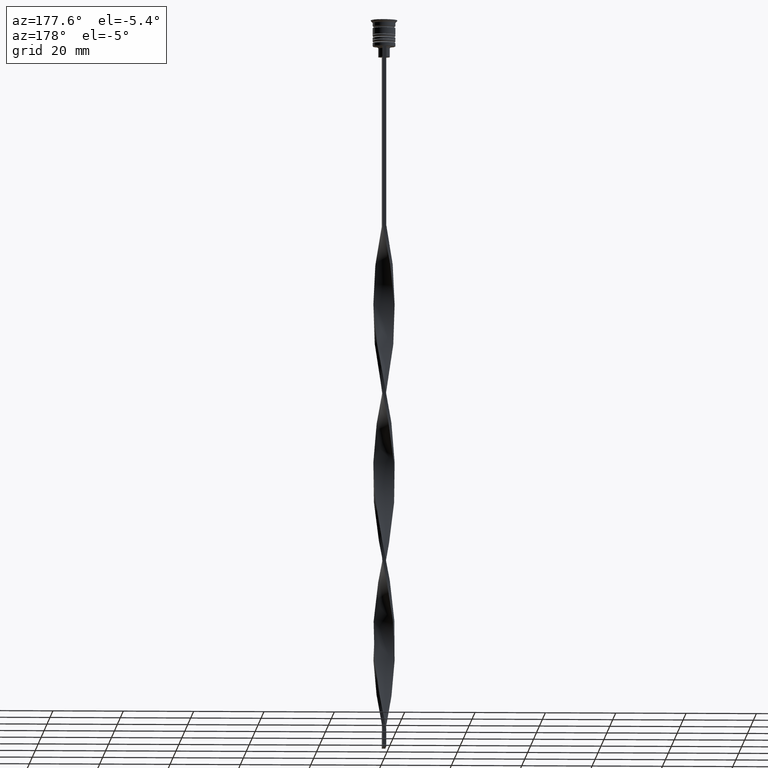
[diagram: clean part render]
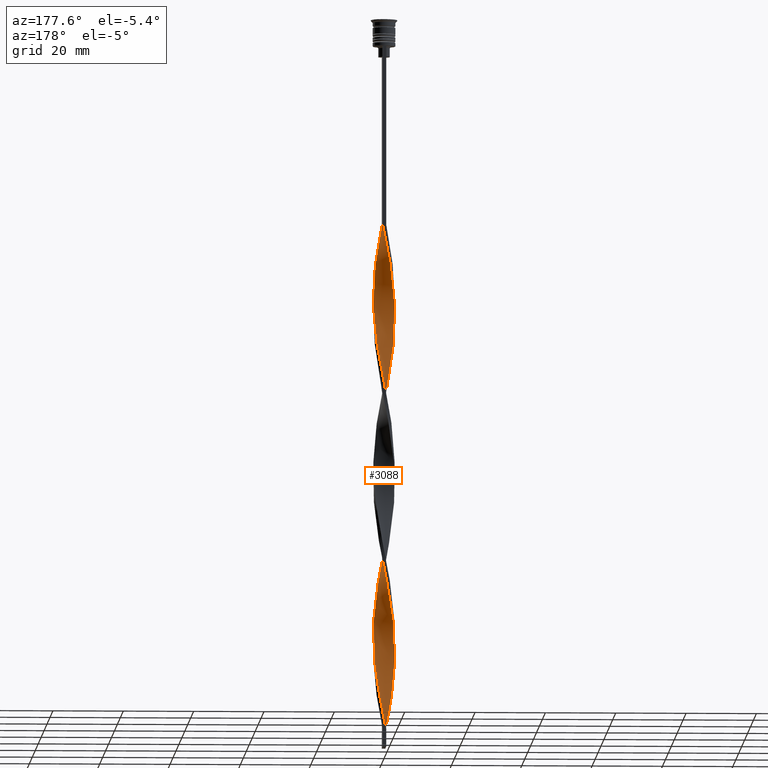
[diagram: same view with one face highlighted and labeled with its STEP entity id]
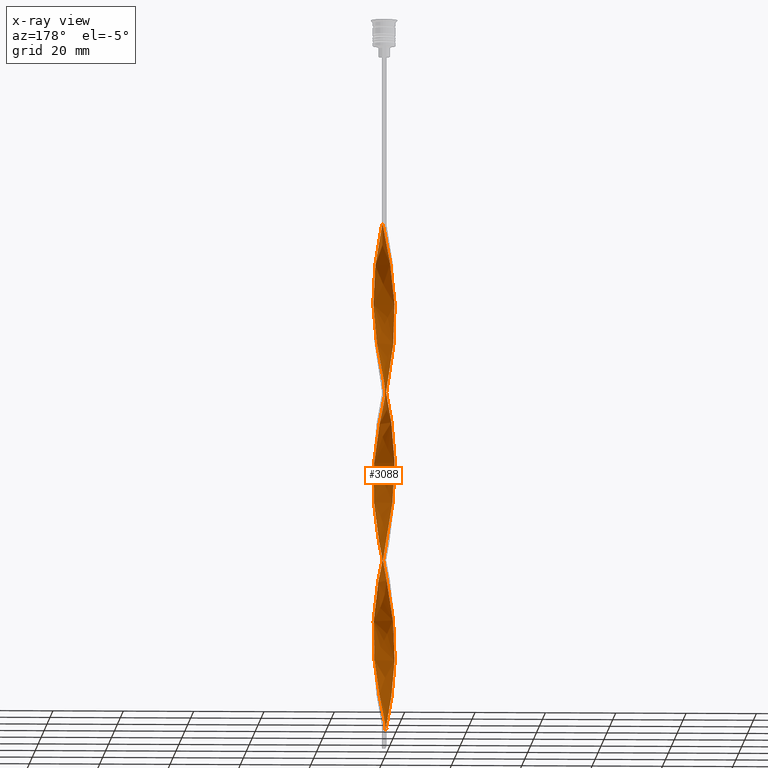
[diagram: x-ray of the same camera — body ghosted, the highlighted face saturated]
A machine part, auxiliary view. The second image highlights one B-rep face of the part: STEP entity #3088.
The next image is the same camera in x-ray: the body ghosted, the highlighted face saturated — about 0% of this face is hidden behind the body in this view.
In plain terms, the highlighted face is a freeform B-spline surface patch.
Its self-contained STEP definition (entity closure, byte-faithful):
#1 = CARTESIAN_POINT ( 'NONE',  ( -2.390591389550001722, -1.880178929838698387, -95.20588235294117396 ) ) ;
#15 = CARTESIAN_POINT ( 'NONE',  ( -2.908359051953456120, -0.8896334216520835891, -185.5588235294117396 ) ) ;
#20 = CARTESIAN_POINT ( 'NONE',  ( -2.941068349153452388, 0.7746721665374231014, -177.0882352941176237 ) ) ;
#36 = CARTESIAN_POINT ( 'NONE',  ( -1.792442958670039443, -2.473170806831126889, -195.4411764705882604 ) ) ;
#39 = CARTESIAN_POINT ( 'NONE',  ( -0.8934446992291310563, 2.920818749814322324, -161.5588235294117396 ) ) ;
#57 = CARTESIAN_POINT ( 'NONE',  ( -0.2220090612739103741, -3.046331823121014803, -107.9117647058823621 ) ) ;
#71 = CARTESIAN_POINT ( 'NONE',  ( 1.549961113263636836, 2.616795855119490533, -148.8529411764705799 ) ) ;
#81 = CARTESIAN_POINT ( 'NONE',  ( -1.792442958670038777, 2.473170806831127333, -113.5588235294117396 ) ) ;
#82 = CARTESIAN_POINT ( 'NONE',  ( -2.390591389550001722, -1.880178929838698387, -191.2058823529411598 ) ) ;
#87 = CARTESIAN_POINT ( 'NONE',  ( 0.6174888838592811346, 2.978037521306644120, -100.8529411764705941 ) ) ;
#98 = CARTESIAN_POINT ( 'NONE',  ( 3.033336708616754862, 0.2210620097576110610, -81.08823529411763786 ) ) ;
#104 = CARTESIAN_POINT ( 'NONE',  ( -1.549961113263637058, 2.616795855119490533, -112.1470588235294059 ) ) ;
#119 = CARTESIAN_POINT ( 'NONE',  ( -2.990795728622512417, 0.6201342673170635589, -124.8529411764705799 ) ) ;
#127 = CARTESIAN_POINT ( 'NONE',  ( 1.414931142305390521, 2.706916227440719247, -96.61764705882353610 ) ) ;
#138 = CARTESIAN_POINT ( 'NONE',  ( 1.651582472329342632, 2.553874573485255706, -95.20588235294117396 ) ) ;
#150 = CARTESIAN_POINT ( 'NONE',  ( 2.695369000030346296, -1.408895295497649691, -72.61764705882352189 ) ) ;
#163 = CARTESIAN_POINT ( 'NONE',  ( 0.7779909387260891540, -2.953668176878985641, -59.91176470588236214 ) ) ;
#170 = B_SPLINE_CURVE_WITH_KNOTS ( 'NONE', 3,
 ( #608, #1396, #1716, #1735 ),
 .UNSPECIFIED., .F., .F.,
 ( 4, 4 ),
 ( 0.000000000000000000, 1.000000000000000000 ),
 .UNSPECIFIED. ) ;
#173 = CARTESIAN_POINT ( 'NONE',  ( 0.05976200360776034309, 3.040794057959990582, -199.6764705882352757 ) ) ;
#181 = CARTESIAN_POINT ( 'NONE',  ( 2.990795728622511973, -0.6201342673170637809, -172.8529411764705799 ) ) ;
#188 = CARTESIAN_POINT ( 'NONE',  ( -1.414931142305390965, -2.706916227440719247, -144.6176470588235361 ) ) ;
#194 = CARTESIAN_POINT ( 'NONE',  ( -2.564815624776293213, -1.658658015008195319, -93.79411764705882604 ) ) ;
#197 = CARTESIAN_POINT ( 'NONE',  ( -2.908359051953456564, 0.8896334216520830340, -123.4411764705882177 ) ) ;
#208 = CARTESIAN_POINT ( 'NONE',  ( -0.8934446992291305012, -2.920818749814322324, -147.4411764705882320 ) ) ;
#213 = CARTESIAN_POINT ( 'NONE',  ( -2.004405056496874504, -2.287435325750164505, -98.02941176470588402 ) ) ;
#214 = CARTESIAN_POINT ( 'NONE',  ( 0.6174888838592811346, 2.978037521306644120, -196.8529411764705515 ) ) ;
#225 = CARTESIAN_POINT ( 'NONE',  ( 3.012852296747023484, 0.5021420494578369143, -178.5000000000000000 ) ) ;
#232 = CARTESIAN_POINT ( 'NONE',  ( -2.216367154323709787, -2.101699844669203010, -96.61764705882355031 ) ) ;
#234 = CARTESIAN_POINT ( 'NONE',  ( 2.825922375284400712, -1.159132575987104063, -170.0294117647058556 ) ) ;
#242 = CARTESIAN_POINT ( 'NONE',  ( -0.3415330684894319901, -3.035256292798965916, -150.2647058823528994 ) ) ;
#250 = CARTESIAN_POINT ( 'NONE',  ( -3.053821120486486240, -0.06001802994261491719, -85.32352941176469585 ) ) ;
#269 = CARTESIAN_POINT ( 'NONE',  ( 2.628006467404950364, -1.556601299988307430, -124.8529411764705799 ) ) ;
#276 = CARTESIAN_POINT ( 'NONE',  ( -1.042735103291662080, -2.857044540143419908, -103.6764705882352899 ) ) ;
#287 = CARTESIAN_POINT ( 'NONE',  ( -3.012852296747023484, 0.5021420494578373583, -178.5000000000000000 ) ) ;
#293 = CARTESIAN_POINT ( 'NONE',  ( -2.990795728622511973, -0.6201342673170633368, -88.14705882352940591 ) ) ;
#303 = CARTESIAN_POINT ( 'NONE',  ( -2.216367154323709787, -2.101699844669203010, -192.6176470588235077 ) ) ;
#306 = CARTESIAN_POINT ( 'NONE',  ( -0.6174888838592811346, 2.978037521306644120, -160.1470588235293917 ) ) ;
#325 = CARTESIAN_POINT ( 'NONE',  ( -1.792442958670039221, -2.473170806831126445, -99.44117647058823195 ) ) ;
#336 = CARTESIAN_POINT ( 'NONE',  ( 2.825922375284400712, 1.159132575987103841, -138.9705882352941160 ) ) ;
#340 = CARTESIAN_POINT ( 'NONE',  ( 1.154187920767260511, -2.813867488627520341, -114.9705882352941018 ) ) ;
#347 = CARTESIAN_POINT ( 'NONE',  ( 1.154187920767260289, 2.813867488627520785, -98.02941176470588402 ) ) ;
#348 = CARTESIAN_POINT ( 'NONE',  ( -2.564815624776293213, -1.658658015008195319, -189.7941176470588118 ) ) ;
#355 = CARTESIAN_POINT ( 'NONE',  ( -3.033336708616754418, 0.2210620097576115606, -179.9117647058823195 ) ) ;
#363 = ORIENTED_EDGE ( 'NONE', *, *, #1835, .F. ) ;
#366 = CARTESIAN_POINT ( 'NONE',  ( -0.4999999999999995559, 3.000000000000000000, -106.4999999999999858 ) ) ;
#374 = CARTESIAN_POINT ( 'NONE',  ( 3.012852296747023484, 0.5021420494578369143, -82.49999999999998579 ) ) ;
#384 = CARTESIAN_POINT ( 'NONE',  ( -2.216367154323709343, 2.101699844669203454, -116.3823529411764781 ) ) ;
#385 = DIRECTION ( 'NONE',  ( 0.000000000000000000, 1.000000000000000000, 0.000000000000000000 ) ) ;
#391 = CARTESIAN_POINT ( 'NONE',  ( -2.390591389550001278, 1.880178929838698831, -117.7941176470588118 ) ) ;
#404 = CARTESIAN_POINT ( 'NONE',  ( 1.888233802353294966, 2.400832919529793497, -93.79411764705882604 ) ) ;
#412 = CARTESIAN_POINT ( 'NONE',  ( -1.042735103291661192, 2.857044540143419908, -109.3235294117646959 ) ) ;
#433 = CARTESIAN_POINT ( 'NONE',  ( -2.390591389550001722, -1.880178929838698387, -191.2058823529411598 ) ) ;
#440 = CARTESIAN_POINT ( 'NONE',  ( -2.628006467404950808, -1.556601299988306542, -136.1470588235294201 ) ) ;
#448 = CARTESIAN_POINT ( 'NONE',  ( 2.908359051953456564, -0.8896334216520838112, -171.4411764705882035 ) ) ;
#454 = CARTESIAN_POINT ( 'NONE',  ( -0.2220090612739111235, 3.046331823121015692, -201.0882352941176237 ) ) ;
#461 = CARTESIAN_POINT ( 'NONE',  ( 2.004405056496874504, -2.287435325750164505, -162.9705882352940876 ) ) ;
#467 = CARTESIAN_POINT ( 'NONE',  ( -1.154187920767261843, -2.813867488627519897, -146.0294117647058556 ) ) ;
#474 = CARTESIAN_POINT ( 'NONE',  ( -1.307479267857235117, -2.760420903407855509, -102.2647058823529420 ) ) ;
#475 = CARTESIAN_POINT ( 'NONE',  ( 1.651582472329342632, 2.553874573485255706, -191.2058823529411598 ) ) ;
#486 =( BOUNDED_SURFACE ( )  B_SPLINE_SURFACE ( 1, 2, ( 
 ( #1313, #3556, #3316, #1612, #2226, #769, #3630, #3337, #2460, #3571, #809, #1048, #1951, #522, #1672, #3296, #1910, #2519, #1111, #2242, #828, #293, #3149, #3374, #2878, #2063, #1, #3092, #601, #325, #2806, #3443, #276, #1710, #1463, #57, #1482, #3130, #3394, #1693, #340, #869, #2299, #920, #1767, #2284, #620, #1448, #1409, #1148, #2572, #1170, #542, #1204, #2014, #1729, #2605, #2552, #2826, #2537, #563, #1751, #3113, #584, #71, #2031, #1127, #2263, #1188, #2838, #2862, #2590, #306, #39, #886, #2315, #3426, #851, #3412, #904, #1994, #2048, #2331, #1428, #20, #710, #355, #3206, #1855, #2968, #3221, #1499, #1238, #3185, #433, #1580, #2623, #2700, #3459, #653, #1220, #2362, #2099 ),
 ( #676, #163, #954, #1294, #2949, #1008, #2681, #2423, #2345, #3498, #150, #938, #973, #2895, #2640, #3165, #693, #374, #1255, #3531, #991, #2661, #1818, #1556, #2118, #2078, #636, #127, #1800, #3242, #87, #2385, #1784, #1518, #1837, #2916, #412, #1278, #104, #3477, #2931, #2402, #391, #1536, #3513, #2136, #197, #3587, #1646, #1666, #787, #1872, #1595, #3567, #2456, #1045, #3312, #3277, #2985, #2184, #2439, #3293, #3019, #2768, #3626, #2149, #2516, #764, #2715, #1928, #1332, #519, #3039, #3003, #461, #2746, #1607, #2197, #497, #234, #448, #181, #1309, #1364, #2494, #2169, #3551, #3260, #1907, #2728, #3605, #1090, #1030, #744, #475, #1627, #1890, #729, #214, #1347, #2476, #1066, #2221 ) ),
 .UNSPECIFIED., .F., .F., .F. ) 
 B_SPLINE_SURFACE_WITH_KNOTS ( ( 2, 2 ),
 ( 3, 2, 2, 2, 2, 2, 2, 2, 2, 2, 2, 2, 2, 2, 2, 2, 2, 2, 2, 2, 2, 2, 2, 2, 2, 2, 2, 2, 2, 2, 2, 2, 2, 2, 2, 2, 2, 2, 2, 2, 2, 2, 2, 2, 2, 2, 2, 2, 2, 2, 2, 3 ),
 ( 0.000000000000000000, 1.000000000000000000 ),
 ( 0.000000000000000000, 0.01470588235294117627, 0.02941176470588235253, 0.04411764705882353227, 0.05882352941176470507, 0.07352941176470588480, 0.08823529411764706454, 0.1029411764705882304, 0.1176470588235294101, 0.1323529411764705899, 0.1470588235294117696, 0.1617647058823529493, 0.1764705882352941291, 0.1911764705882352811, 0.2058823529411764608, 0.2205882352941176405, 0.2352941176470588203, 0.2500000000000000000, 0.2647058823529411797, 0.2794117647058823595, 0.2941176470588235392, 0.3088235294117647189, 0.3235294117647058987, 0.3382352941176470784, 0.3529411764705882582, 0.3676470588235294379, 0.3823529411764705621, 0.3970588235294117418, 0.4117647058823529216, 0.4264705882352941013, 0.4411764705882352811, 0.4558823529411764608, 0.4705882352941176405, 0.4852941176470588203, 0.5000000000000000000, 0.5147058823529411242, 0.5294117647058823595, 0.5441176470588234837, 0.5588235294117647189, 0.5735294117647058432, 0.5882352941176470784, 0.6029411764705882026, 0.6176470588235294379, 0.6323529411764705621, 0.6470588235294117974, 0.6617647058823529216, 0.6764705882352941568, 0.6911764705882352811, 0.7058823529411765163, 0.7205882352941176405, 0.7352941176470588758, 0.7500000000000000000 ),
 .UNSPECIFIED. ) 
 GEOMETRIC_REPRESENTATION_ITEM ( )  RATIONAL_B_SPLINE_SURFACE ( (
 ( 1.000000000000000000, 0.9957341762950344677, 1.000000000000000000, 0.9957341762950344677, 1.000000000000000000, 0.9957341762950344677, 1.000000000000000000, 0.9957341762950344677, 1.000000000000000000, 0.9957341762950344677, 1.000000000000000000, 0.9957341762950344677, 1.000000000000000000, 0.9957341762950344677, 1.000000000000000000, 0.9957341762950344677, 1.000000000000000000, 0.9957341762950344677, 1.000000000000000000, 0.9957341762950344677, 1.000000000000000000, 0.9957341762950344677, 1.000000000000000000, 0.9957341762950344677, 1.000000000000000000, 0.9957341762950344677, 1.000000000000000000, 0.9957341762950344677, 1.000000000000000000, 0.9957341762950344677, 1.000000000000000000, 0.9957341762950344677, 1.000000000000000000, 0.9957341762950344677, 1.000000000000000000, 0.9957341762950344677, 1.000000000000000000, 0.9957341762950344677, 1.000000000000000000, 0.9957341762950344677, 1.000000000000000000, 0.9957341762950344677, 1.000000000000000000, 0.9957341762950344677, 1.000000000000000000, 0.9957341762950344677, 1.000000000000000000, 0.9957341762950344677, 1.000000000000000000, 0.9957341762950344677, 1.000000000000000000, 0.9957341762950344677, 1.000000000000000000, 0.9957341762950344677, 1.000000000000000000, 0.9957341762950344677, 1.000000000000000000, 0.9957341762950344677, 1.000000000000000000, 0.9957341762950344677, 1.000000000000000000, 0.9957341762950344677, 1.000000000000000000, 0.9957341762950344677, 1.000000000000000000, 0.9957341762950344677, 1.000000000000000000, 0.9957341762950344677, 1.000000000000000000, 0.9957341762950344677, 1.000000000000000000, 0.9957341762950344677, 1.000000000000000000, 0.9957341762950344677, 1.000000000000000000, 0.9957341762950344677, 1.000000000000000000, 0.9957341762950344677, 1.000000000000000000, 0.9957341762950344677, 1.000000000000000000, 0.9957341762950344677, 1.000000000000000000, 0.9957341762950344677, 1.000000000000000000, 0.9957341762950344677, 1.000000000000000000, 0.9957341762950344677, 1.000000000000000000, 0.9957341762950344677, 1.000000000000000000, 0.9957341762950344677, 1.000000000000000000, 0.9957341762950344677, 1.000000000000000000, 0.9957341762950344677, 1.000000000000000000, 0.9957341762950344677, 1.000000000000000000, 0.9957341762950344677, 1.000000000000000000, 0.9957341762950344677, 1.000000000000000000),
 ( 1.000000000000000000, 0.9957341762950344677, 1.000000000000000000, 0.9957341762950344677, 1.000000000000000000, 0.9957341762950344677, 1.000000000000000000, 0.9957341762950344677, 1.000000000000000000, 0.9957341762950344677, 1.000000000000000000, 0.9957341762950344677, 1.000000000000000000, 0.9957341762950344677, 1.000000000000000000, 0.9957341762950344677, 1.000000000000000000, 0.9957341762950344677, 1.000000000000000000, 0.9957341762950344677, 1.000000000000000000, 0.9957341762950344677, 1.000000000000000000, 0.9957341762950344677, 1.000000000000000000, 0.9957341762950344677, 1.000000000000000000, 0.9957341762950344677, 1.000000000000000000, 0.9957341762950344677, 1.000000000000000000, 0.9957341762950344677, 1.000000000000000000, 0.9957341762950344677, 1.000000000000000000, 0.9957341762950344677, 1.000000000000000000, 0.9957341762950344677, 1.000000000000000000, 0.9957341762950344677, 1.000000000000000000, 0.9957341762950344677, 1.000000000000000000, 0.9957341762950344677, 1.000000000000000000, 0.9957341762950344677, 1.000000000000000000, 0.9957341762950344677, 1.000000000000000000, 0.9957341762950344677, 1.000000000000000000, 0.9957341762950344677, 1.000000000000000000, 0.9957341762950344677, 1.000000000000000000, 0.9957341762950344677, 1.000000000000000000, 0.9957341762950344677, 1.000000000000000000, 0.9957341762950344677, 1.000000000000000000, 0.9957341762950344677, 1.000000000000000000, 0.9957341762950344677, 1.000000000000000000, 0.9957341762950344677, 1.000000000000000000, 0.9957341762950344677, 1.000000000000000000, 0.9957341762950344677, 1.000000000000000000, 0.9957341762950344677, 1.000000000000000000, 0.9957341762950344677, 1.000000000000000000, 0.9957341762950344677, 1.000000000000000000, 0.9957341762950344677, 1.000000000000000000, 0.9957341762950344677, 1.000000000000000000, 0.9957341762950344677, 1.000000000000000000, 0.9957341762950344677, 1.000000000000000000, 0.9957341762950344677, 1.000000000000000000, 0.9957341762950344677, 1.000000000000000000, 0.9957341762950344677, 1.000000000000000000, 0.9957341762950344677, 1.000000000000000000, 0.9957341762950344677, 1.000000000000000000, 0.9957341762950344677, 1.000000000000000000, 0.9957341762950344677, 1.000000000000000000, 0.9957341762950344677, 1.000000000000000000, 0.9957341762950344677, 1.000000000000000000) ) ) 
 REPRESENTATION_ITEM ( '' )  SURFACE ( )  );
#490 = CARTESIAN_POINT ( 'NONE',  ( 1.888233802353294966, 2.400832919529793497, -189.7941176470588118 ) ) ;
#497 = CARTESIAN_POINT ( 'NONE',  ( 2.695369000030346296, -1.408895295497649691, -168.6176470588235077 ) ) ;
#509 = CARTESIAN_POINT ( 'NONE',  ( 2.390591389550001278, -1.880178929838698831, -165.7941176470588118 ) ) ;
#519 = CARTESIAN_POINT ( 'NONE',  ( 1.307479267857234673, -2.760420903407855509, -158.7352941176470154 ) ) ;
#522 = CARTESIAN_POINT ( 'NONE',  ( -2.628006467404950364, 1.556601299988307430, -76.85294117647060830 ) ) ;
#530 = EDGE_LOOP ( 'NONE', ( #2038, #3300, #363, #1611 ) ) ;
#536 = CARTESIAN_POINT ( 'NONE',  ( 1.414931142305389411, -2.706916227440719691, -116.3823529411764781 ) ) ;
#542 = CARTESIAN_POINT ( 'NONE',  ( 3.033336708616754418, -0.2210620097576125875, -131.9117647058823479 ) ) ;
#557 = CARTESIAN_POINT ( 'NONE',  ( 2.695369000030347184, 1.408895295497648803, -140.3823529411764639 ) ) ;
#563 = CARTESIAN_POINT ( 'NONE',  ( 2.390591389550000834, 1.880178929838699053, -143.2058823529411882 ) ) ;
#577 = CARTESIAN_POINT ( 'NONE',  ( -1.651582472329342188, 2.553874573485256150, -165.7941176470588118 ) ) ;
#584 = CARTESIAN_POINT ( 'NONE',  ( 1.792442958670038555, 2.473170806831126889, -147.4411764705882320 ) ) ;
#596 = CARTESIAN_POINT ( 'NONE',  ( -0.5000000000000002220, -3.000000000000000000, -202.4999999999999716 ) ) ;
#601 = CARTESIAN_POINT ( 'NONE',  ( -2.004405056496874504, -2.287435325750164505, -98.02941176470588402 ) ) ;
#608 = CARTESIAN_POINT ( 'NONE',  ( -0.5000000000000002220, -3.000000000000000000, -202.4999999999999716 ) ) ;
#616 = CARTESIAN_POINT ( 'NONE',  ( -1.888233802353294966, 2.400832919529793497, -167.2058823529411882 ) ) ;
#620 = CARTESIAN_POINT ( 'NONE',  ( 2.462620696176918589, -1.784796713007145375, -123.4411764705882177 ) ) ;
#631 = CARTESIAN_POINT ( 'NONE',  ( 0.4999999999999998890, -3.000000000000000000, -58.50000000000000000 ) ) ;
#632 = CARTESIAN_POINT ( 'NONE',  ( -2.297234924948886370, 2.012992126025985318, -170.0294117647058840 ) ) ;
#636 = CARTESIAN_POINT ( 'NONE',  ( 1.651582472329342632, 2.553874573485255706, -95.20588235294117396 ) ) ;
#644 = CARTESIAN_POINT ( 'NONE',  ( -0.2220090612739111235, 3.046331823121015692, -105.0882352941176521 ) ) ;
#653 = CARTESIAN_POINT ( 'NONE',  ( -1.307479267857235339, -2.760420903407855509, -198.2647058823529562 ) ) ;
#676 = CARTESIAN_POINT ( 'NONE',  ( 0.4999999999999998890, -3.000000000000000000, -58.50000000000000000 ) ) ;
#684 = CARTESIAN_POINT ( 'NONE',  ( 3.022308424554498441, -0.3400761486298388703, -78.26470588235292780 ) ) ;
#693 = CARTESIAN_POINT ( 'NONE',  ( 3.033336708616754862, 0.2210620097576110610, -81.08823529411763786 ) ) ;
#704 = CARTESIAN_POINT ( 'NONE',  ( -0.7779909387260893761, 2.953668176878985641, -107.9117647058823621 ) ) ;
#710 = CARTESIAN_POINT ( 'NONE',  ( -3.012852296747023484, 0.5021420494578373583, -178.4999999999999716 ) ) ;
#719 = CARTESIAN_POINT ( 'NONE',  ( 1.307479267857234451, -2.760420903407855509, -158.7352941176470438 ) ) ;
#729 = CARTESIAN_POINT ( 'NONE',  ( 0.8934446992291316114, 2.920818749814321880, -195.4411764705882604 ) ) ;
#736 = CARTESIAN_POINT ( 'NONE',  ( 3.033336708616754862, 0.2210620097576110610, -177.0882352941176237 ) ) ;
#742 = CARTESIAN_POINT ( 'NONE',  ( -2.695369000030346740, -1.408895295497649247, -92.38235294117646390 ) ) ;
#744 = CARTESIAN_POINT ( 'NONE',  ( 1.888233802353294966, 2.400832919529793497, -189.7941176470587834 ) ) ;
#756 = CARTESIAN_POINT ( 'NONE',  ( 0.2220090612739107072, -3.046331823121016136, -153.0882352941176237 ) ) ;
#764 = CARTESIAN_POINT ( 'NONE',  ( 0.2220090612739107072, -3.046331823121015692, -153.0882352941176237 ) ) ;
#769 = CARTESIAN_POINT ( 'NONE',  ( -0.8934446992291310563, 2.920818749814322324, -65.55882352941179647 ) ) ;
#777 = CARTESIAN_POINT ( 'NONE',  ( 1.792442958670039221, -2.473170806831127333, -161.5588235294117680 ) ) ;
#787 = CARTESIAN_POINT ( 'NONE',  ( -3.033336708616754418, -0.2210620097576114496, -129.0882352941176521 ) ) ;
#797 = CARTESIAN_POINT ( 'NONE',  ( -2.748645434482416050, -1.301901791802657860, -134.7352941176470722 ) ) ;
#804 = CARTESIAN_POINT ( 'NONE',  ( -2.297234924948886370, 2.012992126025985318, -74.02941176470586981 ) ) ;
#809 = CARTESIAN_POINT ( 'NONE',  ( -2.092734363651090224, 2.206912522777888963, -72.61764705882352189 ) ) ;
#825 = CARTESIAN_POINT ( 'NONE',  ( -1.154187920767260289, 2.813867488627520785, -66.97058823529411598 ) ) ;
#828 = CARTESIAN_POINT ( 'NONE',  ( -3.022308424554498441, -0.3400761486298393144, -86.73529411764704378 ) ) ;
#844 = CARTESIAN_POINT ( 'NONE',  ( 2.390591389550000834, 1.880178929838699053, -143.2058823529411882 ) ) ;
#851 = CARTESIAN_POINT ( 'NONE',  ( -1.888233802353294966, 2.400832919529793497, -167.2058823529411882 ) ) ;
#865 = CARTESIAN_POINT ( 'NONE',  ( 2.941068349153452832, -0.7746721665374229904, -129.0882352941176521 ) ) ;
#869 = CARTESIAN_POINT ( 'NONE',  ( 1.414931142305389633, -2.706916227440719691, -116.3823529411764781 ) ) ;
#880 = CARTESIAN_POINT ( 'NONE',  ( -1.042735103291662080, -2.857044540143419908, -199.6764705882352757 ) ) ;
#886 = CARTESIAN_POINT ( 'NONE',  ( -1.154187920767260289, 2.813867488627520785, -162.9705882352940876 ) ) ;
#896 = CARTESIAN_POINT ( 'NONE',  ( -2.462620696176917701, 1.784796713007145819, -171.4411764705882035 ) ) ;
#904 = CARTESIAN_POINT ( 'NONE',  ( -2.297234924948886814, 2.012992126025985318, -170.0294117647058556 ) ) ;
#915 = CARTESIAN_POINT ( 'NONE',  ( 1.307479267857235339, 2.760420903407855064, -150.2647058823528994 ) ) ;
#920 = CARTESIAN_POINT ( 'NONE',  ( 1.888233802353294966, -2.400832919529793497, -119.2058823529411455 ) ) ;
#930 = CARTESIAN_POINT ( 'NONE',  ( 2.869284401559882625, 1.047202283617009400, -85.32352941176469585 ) ) ;
#938 = CARTESIAN_POINT ( 'NONE',  ( 2.825922375284400712, -1.159132575987104063, -74.02941176470586981 ) ) ;
#947 = CARTESIAN_POINT ( 'NONE',  ( 2.695369000030346296, -1.408895295497649691, -72.61764705882352189 ) ) ;
#954 = CARTESIAN_POINT ( 'NONE',  ( 1.042735103291661858, -2.857044540143419908, -61.32352941176470296 ) ) ;
#965 = CARTESIAN_POINT ( 'NONE',  ( 2.564815624776293213, -1.658658015008195319, -71.20588235294118817 ) ) ;
#973 = CARTESIAN_POINT ( 'NONE',  ( 2.908359051953456564, -0.8896334216520838112, -75.44117647058823195 ) ) ;
#982 = CARTESIAN_POINT ( 'NONE',  ( 0.3415330684894316016, 3.035256292798965916, -102.2647058823529420 ) ) ;
#991 = CARTESIAN_POINT ( 'NONE',  ( 2.748645434482416050, 1.301901791802658304, -86.73529411764704378 ) ) ;
#1008 = CARTESIAN_POINT ( 'NONE',  ( 1.792442958670038999, -2.473170806831126889, -65.55882352941179647 ) ) ;
#1030 = CARTESIAN_POINT ( 'NONE',  ( 2.092734363651090668, 2.206912522777888963, -188.3823529411764355 ) ) ;
#1037 = CARTESIAN_POINT ( 'NONE',  ( 2.564815624776293213, -1.658658015008195319, -167.2058823529411882 ) ) ;
#1045 = CARTESIAN_POINT ( 'NONE',  ( -2.628006467404950808, -1.556601299988306542, -136.1470588235294201 ) ) ;
#1048 = CARTESIAN_POINT ( 'NONE',  ( -2.297234924948886814, 2.012992126025985318, -74.02941176470586981 ) ) ;
#1066 = CARTESIAN_POINT ( 'NONE',  ( -0.2220090612739111235, 3.046331823121015248, -201.0882352941176237 ) ) ;
#1090 = CARTESIAN_POINT ( 'NONE',  ( 2.297234924948886814, 2.012992126025985762, -186.9705882352941444 ) ) ;
#1100 = CARTESIAN_POINT ( 'NONE',  ( 2.908359051953456564, -0.8896334216520838112, -171.4411764705882035 ) ) ;
#1102 = VERTEX_POINT ( 'NONE', #2659 ) ;
#1106 = CARTESIAN_POINT ( 'NONE',  ( -1.792442958670039443, -2.473170806831126889, -99.44117647058823195 ) ) ;
#1111 = CARTESIAN_POINT ( 'NONE',  ( -3.033336708616754418, 0.2210620097576115606, -83.91176470588234793 ) ) ;
#1123 = CARTESIAN_POINT ( 'NONE',  ( -2.990795728622512417, -0.6201342673170633368, -88.14705882352940591 ) ) ;
#1127 = CARTESIAN_POINT ( 'NONE',  ( 1.042735103291660970, 2.857044540143419908, -151.6764705882353041 ) ) ;
#1141 = CARTESIAN_POINT ( 'NONE',  ( 3.053821120486486240, 0.06001802994261524332, -133.3235294117646959 ) ) ;
#1148 = CARTESIAN_POINT ( 'NONE',  ( 2.869284401559883069, -1.047202283617008511, -127.6764705882352615 ) ) ;
#1163 = CARTESIAN_POINT ( 'NONE',  ( -1.549961113263636614, -2.616795855119490533, -196.8529411764705515 ) ) ;
#1169 =( BOUNDED_CURVE ( )  B_SPLINE_CURVE ( 2, ( #1643, #2490, #3642, #1402, #1346, #1926, #825, #2745, #3016, #1888, #3289, #804, #3308, #3038, #1965, #2765, #3071, #1665, #2255, #250, #2530, #1123, #1905, #1384, #742, #194, #3002, #232, #213, #1106, #3053, #474, #2726, #2217, #3330, #1329, #2455, #3586, #1946, #2781, #3623, #536, #1686, #2238, #3566, #3350, #2801, #269, #2310, #1422, #865, #2324, #3438, #1141, #3125, #3389, #1440, #336, #557, #1987, #844, #2601, #1762, #2008, #3105, #915, #2549, #2059, #1216, #2819, #2279, #3421, #3144, #3087, #2615, #1704, #577, #616, #2872, #632, #896, #1743, #1723, #1491, #3159, #287, #3406, #1778, #2889, #2043, #15, #2566, #2834, #348, #82, #303, #3369, #36, #1163, #2294, #880, #2026, #596 ),
 .UNSPECIFIED., .F., .T. ) 
 B_SPLINE_CURVE_WITH_KNOTS ( ( 3, 2, 2, 2, 2, 2, 2, 2, 2, 2, 2, 2, 2, 2, 2, 2, 2, 2, 2, 2, 2, 2, 2, 2, 2, 2, 2, 2, 2, 2, 2, 2, 2, 2, 2, 2, 2, 2, 2, 2, 2, 2, 2, 2, 2, 2, 2, 2, 2, 2, 2, 3 ),
 ( 0.000000000000000000, 0.01470588235294117453, 0.02941176470588234906, 0.04411764705882353227, 0.05882352941176469813, 0.07352941176470588480, 0.08823529411764706454, 0.1029411764705882443, 0.1176470588235293963, 0.1323529411764705899, 0.1470588235294117696, 0.1617647058823529493, 0.1764705882352941291, 0.1911764705882352811, 0.2058823529411764885, 0.2205882352941176405, 0.2352941176470587925, 0.2500000000000000000, 0.2647058823529411797, 0.2794117647058823595, 0.2941176470588235392, 0.3088235294117647189, 0.3235294117647058987, 0.3382352941176470229, 0.3529411764705882582, 0.3676470588235294379, 0.3823529411764705621, 0.3970588235294117418, 0.4117647058823529771, 0.4264705882352941013, 0.4411764705882352811, 0.4558823529411764608, 0.4705882352941175850, 0.4852941176470588203, 0.5000000000000000000, 0.5147058823529411242, 0.5294117647058823595, 0.5441176470588234837, 0.5588235294117647189, 0.5735294117647058432, 0.5882352941176470784, 0.6029411764705882026, 0.6176470588235294379, 0.6323529411764705621, 0.6470588235294117974, 0.6617647058823529216, 0.6764705882352940458, 0.6911764705882351700, 0.7058823529411765163, 0.7205882352941176405, 0.7352941176470588758, 0.7500000000000000000 ),
 .UNSPECIFIED. ) 
 CURVE ( )  GEOMETRIC_REPRESENTATION_ITEM ( )  RATIONAL_B_SPLINE_CURVE ( ( 1.000000000000000000, 0.9957341762950344677, 1.000000000000000000, 0.9957341762950344677, 1.000000000000000000, 0.9957341762950344677, 1.000000000000000000, 0.9957341762950344677, 1.000000000000000000, 0.9957341762950344677, 1.000000000000000000, 0.9957341762950344677, 1.000000000000000000, 0.9957341762950344677, 1.000000000000000000, 0.9957341762950344677, 1.000000000000000000, 0.9957341762950344677, 1.000000000000000000, 0.9957341762950344677, 1.000000000000000000, 0.9957341762950344677, 1.000000000000000000, 0.9957341762950344677, 1.000000000000000000, 0.9957341762950344677, 1.000000000000000000, 0.9957341762950344677, 1.000000000000000000, 0.9957341762950344677, 1.000000000000000000, 0.9957341762950344677, 1.000000000000000000, 0.9957341762950344677, 1.000000000000000000, 0.9957341762950344677, 1.000000000000000000, 0.9957341762950344677, 1.000000000000000000, 0.9957341762950344677, 1.000000000000000000, 0.9957341762950344677, 1.000000000000000000, 0.9957341762950344677, 1.000000000000000000, 0.9957341762950344677, 1.000000000000000000, 0.9957341762950344677, 1.000000000000000000, 0.9957341762950344677, 1.000000000000000000, 0.9957341762950344677, 1.000000000000000000, 0.9957341762950344677, 1.000000000000000000, 0.9957341762950344677, 1.000000000000000000, 0.9957341762950344677, 1.000000000000000000, 0.9957341762950344677, 1.000000000000000000, 0.9957341762950344677, 1.000000000000000000, 0.9957341762950344677, 1.000000000000000000, 0.9957341762950344677, 1.000000000000000000, 0.9957341762950344677, 1.000000000000000000, 0.9957341762950344677, 1.000000000000000000, 0.9957341762950344677, 1.000000000000000000, 0.9957341762950344677, 1.000000000000000000, 0.9957341762950344677, 1.000000000000000000, 0.9957341762950344677, 1.000000000000000000, 0.9957341762950344677, 1.000000000000000000, 0.9957341762950344677, 1.000000000000000000, 0.9957341762950344677, 1.000000000000000000, 0.9957341762950344677, 1.000000000000000000, 0.9957341762950344677, 1.000000000000000000, 0.9957341762950344677, 1.000000000000000000, 0.9957341762950344677, 1.000000000000000000, 0.9957341762950344677, 1.000000000000000000, 0.9957341762950344677, 1.000000000000000000, 0.9957341762950344677, 1.000000000000000000, 0.9957341762950344677, 1.000000000000000000, 0.9957341762950344677, 1.000000000000000000 ) ) 
 REPRESENTATION_ITEM ( '' )  );
#1170 = CARTESIAN_POINT ( 'NONE',  ( 3.012852296747023484, -0.5021420494578376914, -130.5000000000000000 ) ) ;
#1188 = CARTESIAN_POINT ( 'NONE',  ( 0.4999999999999998890, 3.000000000000000000, -154.4999999999999716 ) ) ;
#1204 = CARTESIAN_POINT ( 'NONE',  ( 3.053821120486486240, 0.06001802994261524332, -133.3235294117647243 ) ) ;
#1216 = CARTESIAN_POINT ( 'NONE',  ( 0.4999999999999998890, 3.000000000000000000, -154.4999999999999716 ) ) ;
#1220 = CARTESIAN_POINT ( 'NONE',  ( -1.042735103291662080, -2.857044540143419908, -199.6764705882352757 ) ) ;
#1231 = CARTESIAN_POINT ( 'NONE',  ( 2.628006467404950364, 1.556601299988306986, -88.14705882352940591 ) ) ;
#1238 = CARTESIAN_POINT ( 'NONE',  ( -2.695369000030346740, -1.408895295497649247, -188.3823529411764355 ) ) ;
#1247 = CARTESIAN_POINT ( 'NONE',  ( 2.297234924948886370, 2.012992126025985762, -90.97058823529411598 ) ) ;
#1255 = CARTESIAN_POINT ( 'NONE',  ( 2.941068349153452832, 0.7746721665374228794, -83.91176470588234793 ) ) ;
#1267 = CARTESIAN_POINT ( 'NONE',  ( 1.042735103291661858, -2.857044540143419908, -61.32352941176470296 ) ) ;
#1270 = VECTOR ( 'NONE', #385, 1000.000000000000000 ) ;
#1278 = CARTESIAN_POINT ( 'NONE',  ( -1.307479267857234673, 2.760420903407855509, -110.7352941176470438 ) ) ;
#1286 = CARTESIAN_POINT ( 'NONE',  ( 3.053821120486486240, -0.06001802994261470209, -79.67647058823528994 ) ) ;
#1294 = CARTESIAN_POINT ( 'NONE',  ( 1.307479267857234673, -2.760420903407855509, -62.73529411764705799 ) ) ;
#1303 = CARTESIAN_POINT ( 'NONE',  ( -0.4999999999999995559, 3.000000000000000000, -202.4999999999999716 ) ) ;
#1309 = CARTESIAN_POINT ( 'NONE',  ( 3.022308424554498441, -0.3400761486298388703, -174.2647058823529278 ) ) ;
#1313 = CARTESIAN_POINT ( 'NONE',  ( 0.4999999999999998890, 3.000000000000000000, -58.50000000000000000 ) ) ;
#1321 = CARTESIAN_POINT ( 'NONE',  ( -0.05976200360775937165, -3.040794057959990582, -151.6764705882353041 ) ) ;
#1329 = CARTESIAN_POINT ( 'NONE',  ( -0.2220090612739103741, -3.046331823121015248, -107.9117647058823621 ) ) ;
#1332 = CARTESIAN_POINT ( 'NONE',  ( 1.042735103291661858, -2.857044540143419908, -157.3235294117646959 ) ) ;
#1341 = CARTESIAN_POINT ( 'NONE',  ( -3.033336708616754418, -0.2210620097576114496, -129.0882352941176521 ) ) ;
#1346 = CARTESIAN_POINT ( 'NONE',  ( -0.6174888838592811346, 2.978037521306644120, -64.14705882352940591 ) ) ;
#1347 = CARTESIAN_POINT ( 'NONE',  ( 0.3415330684894316571, 3.035256292798965916, -198.2647058823529562 ) ) ;
#1364 = CARTESIAN_POINT ( 'NONE',  ( 3.053821120486486240, -0.06001802994261470209, -175.6764705882353041 ) ) ;
#1374 = CARTESIAN_POINT ( 'NONE',  ( -2.869284401559882625, -1.047202283617009844, -133.3235294117646959 ) ) ;
#1384 = CARTESIAN_POINT ( 'NONE',  ( -2.825922375284400712, -1.159132575987104508, -90.97058823529411598 ) ) ;
#1396 = CARTESIAN_POINT ( 'NONE',  ( -0.5000000000000000000, -1.000000000000000000, -202.4999999999999716 ) ) ;
#1402 = CARTESIAN_POINT ( 'NONE',  ( -0.3415330684894309354, 3.035256292798965916, -62.73529411764705799 ) ) ;
#1409 = CARTESIAN_POINT ( 'NONE',  ( 2.748645434482415606, -1.301901791802658970, -126.2647058823529420 ) ) ;
#1422 = CARTESIAN_POINT ( 'NONE',  ( 2.869284401559883069, -1.047202283617008511, -127.6764705882352757 ) ) ;
#1428 = CARTESIAN_POINT ( 'NONE',  ( -2.869284401559882625, 1.047202283617009400, -175.6764705882353041 ) ) ;
#1440 = CARTESIAN_POINT ( 'NONE',  ( 2.908359051953456120, 0.8896334216520844773, -137.5588235294117680 ) ) ;
#1448 = CARTESIAN_POINT ( 'NONE',  ( 2.628006467404950364, -1.556601299988307430, -124.8529411764705799 ) ) ;
#1463 = CARTESIAN_POINT ( 'NONE',  ( -0.5000000000000002220, -3.000000000000000000, -106.4999999999999858 ) ) ;
#1482 = CARTESIAN_POINT ( 'NONE',  ( 0.05976200360775958675, -3.040794057959990582, -109.3235294117646959 ) ) ;
#1490 = CARTESIAN_POINT ( 'NONE',  ( -3.022308424554498885, 0.3400761486298399805, -126.2647058823529420 ) ) ;
#1491 = CARTESIAN_POINT ( 'NONE',  ( -2.869284401559882625, 1.047202283617009400, -175.6764705882353041 ) ) ;
#1499 = CARTESIAN_POINT ( 'NONE',  ( -2.825922375284400712, -1.159132575987104508, -186.9705882352941444 ) ) ;
#1510 = CARTESIAN_POINT ( 'NONE',  ( 2.941068349153452832, 0.7746721665374228794, -83.91176470588234793 ) ) ;
#1518 = CARTESIAN_POINT ( 'NONE',  ( -0.2220090612739111235, 3.046331823121015248, -105.0882352941176521 ) ) ;
#1529 = CARTESIAN_POINT ( 'NONE',  ( -2.390591389550001278, 1.880178929838698831, -117.7941176470588118 ) ) ;
#1536 = CARTESIAN_POINT ( 'NONE',  ( -2.564815624776293213, 1.658658015008194875, -119.2058823529411455 ) ) ;
#1548 = CARTESIAN_POINT ( 'NONE',  ( -2.564815624776293213, 1.658658015008194875, -119.2058823529411598 ) ) ;
#1556 = CARTESIAN_POINT ( 'NONE',  ( 2.297234924948886814, 2.012992126025985762, -90.97058823529413019 ) ) ;
#1571 = CARTESIAN_POINT ( 'NONE',  ( 0.7779909387260891540, -2.953668176878985641, -59.91176470588236214 ) ) ;
#1580 = CARTESIAN_POINT ( 'NONE',  ( -2.216367154323710231, -2.101699844669203010, -192.6176470588235077 ) ) ;
#1588 = CARTESIAN_POINT ( 'NONE',  ( -1.651582472329341744, -2.553874573485256150, -143.2058823529411882 ) ) ;
#1595 = CARTESIAN_POINT ( 'NONE',  ( -2.941068349153452832, -0.7746721665374217691, -131.9117647058823479 ) ) ;
#1598 = FACE_OUTER_BOUND ( 'NONE', #530, .T. ) ;
#1601 = CARTESIAN_POINT ( 'NONE',  ( 0.7779909387260891540, -2.953668176878985641, -155.9117647058823763 ) ) ;
#1607 = CARTESIAN_POINT ( 'NONE',  ( 2.390591389550001278, -1.880178929838698831, -165.7941176470588118 ) ) ;
#1611 = ORIENTED_EDGE ( 'NONE', *, *, #2117, .F. ) ;
#1612 = CARTESIAN_POINT ( 'NONE',  ( -0.3415330684894309909, 3.035256292798965916, -62.73529411764705799 ) ) ;
#1618 = CARTESIAN_POINT ( 'NONE',  ( -3.012852296747023484, -0.5021420494578365812, -130.5000000000000000 ) ) ;
#1627 = CARTESIAN_POINT ( 'NONE',  ( 1.414931142305390521, 2.706916227440719247, -192.6176470588235077 ) ) ;
#1638 = CARTESIAN_POINT ( 'NONE',  ( 0.3415330684894316016, 3.035256292798965916, -198.2647058823529562 ) ) ;
#1643 = CARTESIAN_POINT ( 'NONE',  ( 0.4999999999999998890, 3.000000000000000000, -58.50000000000000000 ) ) ;
#1646 = CARTESIAN_POINT ( 'NONE',  ( -3.022308424554498885, 0.3400761486298399805, -126.2647058823529420 ) ) ;
#1657 = EDGE_CURVE ( 'NONE', #1102, #2431, #3298, .T. ) ;
#1660 = CARTESIAN_POINT ( 'NONE',  ( 2.695369000030346296, -1.408895295497649691, -168.6176470588235077 ) ) ;
#1665 = CARTESIAN_POINT ( 'NONE',  ( -3.012852296747023484, 0.5021420494578373583, -82.49999999999998579 ) ) ;
#1666 = CARTESIAN_POINT ( 'NONE',  ( -3.053821120486486684, 0.06001802994261361962, -127.6764705882352615 ) ) ;
#1672 = CARTESIAN_POINT ( 'NONE',  ( -2.748645434482416050, 1.301901791802657860, -78.26470588235292780 ) ) ;
#1686 = CARTESIAN_POINT ( 'NONE',  ( 1.651582472329342188, -2.553874573485256150, -117.7941176470588118 ) ) ;
#1693 = CARTESIAN_POINT ( 'NONE',  ( 0.8934446992291308343, -2.920818749814322324, -113.5588235294117538 ) ) ;
#1704 = CARTESIAN_POINT ( 'NONE',  ( -1.414931142305390299, 2.706916227440719247, -164.3823529411764923 ) ) ;
#1710 = CARTESIAN_POINT ( 'NONE',  ( -0.7779909387260889320, -2.953668176878986973, -105.0882352941176521 ) ) ;
#1716 = CARTESIAN_POINT ( 'NONE',  ( -0.4999999999999997780, 1.000000000000000000, -202.4999999999999716 ) ) ;
#1723 = CARTESIAN_POINT ( 'NONE',  ( -2.748645434482416050, 1.301901791802657860, -174.2647058823529278 ) ) ;
#1729 = CARTESIAN_POINT ( 'NONE',  ( 2.990795728622511529, 0.6201342673170625597, -136.1470588235294201 ) ) ;
#1735 = CARTESIAN_POINT ( 'NONE',  ( -0.4999999999999995559, 3.000000000000000000, -202.4999999999999716 ) ) ;
#1743 = CARTESIAN_POINT ( 'NONE',  ( -2.628006467404950364, 1.556601299988307430, -172.8529411764705799 ) ) ;
#1751 = CARTESIAN_POINT ( 'NONE',  ( 2.216367154323710675, 2.101699844669203010, -144.6176470588235361 ) ) ;
#1762 = CARTESIAN_POINT ( 'NONE',  ( 2.004405056496875837, 2.287435325750163617, -146.0294117647058556 ) ) ;
#1767 = CARTESIAN_POINT ( 'NONE',  ( 2.092734363651090224, -2.206912522777889407, -120.6176470588235219 ) ) ;
#1777 = CARTESIAN_POINT ( 'NONE',  ( -1.549961113263637058, 2.616795855119490533, -112.1470588235294059 ) ) ;
#1778 = CARTESIAN_POINT ( 'NONE',  ( -3.053821120486486240, -0.06001802994261491719, -181.3235294117646959 ) ) ;
#1784 = CARTESIAN_POINT ( 'NONE',  ( 0.05976200360776034309, 3.040794057959990582, -103.6764705882352899 ) ) ;
#1791 = CARTESIAN_POINT ( 'NONE',  ( 2.748645434482416050, 1.301901791802658304, -86.73529411764704378 ) ) ;
#1800 = CARTESIAN_POINT ( 'NONE',  ( 1.154187920767260289, 2.813867488627520785, -98.02941176470588402 ) ) ;
#1810 = CARTESIAN_POINT ( 'NONE',  ( 2.092734363651090668, 2.206912522777888963, -92.38235294117646390 ) ) ;
#1818 = CARTESIAN_POINT ( 'NONE',  ( 2.462620696176918145, 1.784796713007145597, -89.55882352941175384 ) ) ;
#1835 = EDGE_CURVE ( 'NONE', #2869, #2431, #170, .T. ) ;
#1837 = CARTESIAN_POINT ( 'NONE',  ( -0.4999999999999995559, 3.000000000000000000, -106.4999999999999858 ) ) ;
#1847 = CARTESIAN_POINT ( 'NONE',  ( -2.695369000030346296, 1.408895295497650135, -120.6176470588235219 ) ) ;
#1855 = CARTESIAN_POINT ( 'NONE',  ( -3.022308424554498441, -0.3400761486298393144, -182.7352941176470438 ) ) ;
#1868 = CARTESIAN_POINT ( 'NONE',  ( 2.748645434482416050, 1.301901791802658304, -182.7352941176470438 ) ) ;
#1872 = CARTESIAN_POINT ( 'NONE',  ( -3.012852296747023484, -0.5021420494578365812, -130.5000000000000000 ) ) ;
#1881 = CARTESIAN_POINT ( 'NONE',  ( 1.042735103291661858, -2.857044540143419908, -157.3235294117646959 ) ) ;
#1888 = CARTESIAN_POINT ( 'NONE',  ( -1.888233802353294966, 2.400832919529793497, -71.20588235294118817 ) ) ;
#1890 = CARTESIAN_POINT ( 'NONE',  ( 1.154187920767260289, 2.813867488627520785, -194.0294117647058556 ) ) ;
#1900 = CARTESIAN_POINT ( 'NONE',  ( 2.216367154323709787, -2.101699844669203010, -164.3823529411764923 ) ) ;
#1905 = CARTESIAN_POINT ( 'NONE',  ( -2.908359051953456120, -0.8896334216520835891, -89.55882352941175384 ) ) ;
#1907 = CARTESIAN_POINT ( 'NONE',  ( 2.748645434482416050, 1.301901791802658304, -182.7352941176470438 ) ) ;
#1910 = CARTESIAN_POINT ( 'NONE',  ( -2.941068349153452388, 0.7746721665374231014, -81.08823529411763786 ) ) ;
#1916 = VERTEX_POINT ( 'NONE', #3549 ) ;
#1919 = CARTESIAN_POINT ( 'NONE',  ( 2.092734363651090668, 2.206912522777888963, -188.3823529411764355 ) ) ;
#1926 = CARTESIAN_POINT ( 'NONE',  ( -0.8934446992291310563, 2.920818749814322324, -65.55882352941178226 ) ) ;
#1928 = CARTESIAN_POINT ( 'NONE',  ( 0.7779909387260891540, -2.953668176878985641, -155.9117647058824048 ) ) ;
#1940 = CARTESIAN_POINT ( 'NONE',  ( -2.297234924948886370, -2.012992126025985318, -138.9705882352941160 ) ) ;
#1946 = CARTESIAN_POINT ( 'NONE',  ( 0.6174888838592815787, -2.978037521306644120, -112.1470588235294059 ) ) ;
#1951 = CARTESIAN_POINT ( 'NONE',  ( -2.462620696176917701, 1.784796713007145819, -75.44117647058823195 ) ) ;
#1965 = CARTESIAN_POINT ( 'NONE',  ( -2.748645434482416050, 1.301901791802657860, -78.26470588235292780 ) ) ;
#1987 = CARTESIAN_POINT ( 'NONE',  ( 2.564815624776292768, 1.658658015008195985, -141.7941176470587834 ) ) ;
#1994 = CARTESIAN_POINT ( 'NONE',  ( -2.462620696176917701, 1.784796713007145819, -171.4411764705882035 ) ) ;
#2008 = CARTESIAN_POINT ( 'NONE',  ( 1.792442958670038777, 2.473170806831127333, -147.4411764705882320 ) ) ;
#2014 = CARTESIAN_POINT ( 'NONE',  ( 3.022308424554498441, 0.3400761486298388703, -134.7352941176470722 ) ) ;
#2026 = CARTESIAN_POINT ( 'NONE',  ( -0.7779909387260889320, -2.953668176878986529, -201.0882352941176237 ) ) ;
#2031 = CARTESIAN_POINT ( 'NONE',  ( 1.307479267857235561, 2.760420903407855064, -150.2647058823529278 ) ) ;
#2038 = ORIENTED_EDGE ( 'NONE', *, *, #2178, .F. ) ;
#2043 = CARTESIAN_POINT ( 'NONE',  ( -2.990795728622512417, -0.6201342673170633368, -184.1470588235293917 ) ) ;
#2048 = CARTESIAN_POINT ( 'NONE',  ( -2.628006467404950364, 1.556601299988307430, -172.8529411764705799 ) ) ;
#2059 = CARTESIAN_POINT ( 'NONE',  ( 0.7779909387260893761, 2.953668176878986085, -153.0882352941176237 ) ) ;
#2063 = CARTESIAN_POINT ( 'NONE',  ( -2.564815624776293213, -1.658658015008195319, -93.79411764705881183 ) ) ;
#2072 = CARTESIAN_POINT ( 'NONE',  ( 0.8934446992291316114, 2.920818749814321880, -99.44117647058823195 ) ) ;
#2078 = CARTESIAN_POINT ( 'NONE',  ( 1.888233802353294966, 2.400832919529793497, -93.79411764705881183 ) ) ;
#2087 = CARTESIAN_POINT ( 'NONE',  ( 1.307479267857234451, -2.760420903407855509, -62.73529411764705799 ) ) ;
#2099 = CARTESIAN_POINT ( 'NONE',  ( -0.5000000000000002220, -3.000000000000000000, -202.4999999999999716 ) ) ;
#2110 = CARTESIAN_POINT ( 'NONE',  ( 2.908359051953456564, -0.8896334216520838112, -75.44117647058823195 ) ) ;
#2117 = EDGE_CURVE ( 'NONE', #1916, #2869, #1169, .T. ) ;
#2118 = CARTESIAN_POINT ( 'NONE',  ( 2.092734363651090668, 2.206912522777888963, -92.38235294117646390 ) ) ;
#2127 = CARTESIAN_POINT ( 'NONE',  ( 3.012852296747023484, 0.5021420494578369143, -82.49999999999998579 ) ) ;
#2136 = CARTESIAN_POINT ( 'NONE',  ( -2.825922375284401156, 1.159132575987104730, -122.0294117647058982 ) ) ;
#2149 = CARTESIAN_POINT ( 'NONE',  ( -0.3415330684894320457, -3.035256292798965472, -150.2647058823529278 ) ) ;
#2162 = CARTESIAN_POINT ( 'NONE',  ( 1.549961113263636614, -2.616795855119490533, -160.1470588235293917 ) ) ;
#2169 = CARTESIAN_POINT ( 'NONE',  ( 3.012852296747023484, 0.5021420494578369143, -178.4999999999999716 ) ) ;
#2176 = CARTESIAN_POINT ( 'NONE',  ( 1.651582472329342632, 2.553874573485255706, -191.2058823529411598 ) ) ;
#2178 = EDGE_CURVE ( 'NONE', #1102, #1916, #2709, .T. ) ;
#2184 = CARTESIAN_POINT ( 'NONE',  ( -1.888233802353293855, -2.400832919529793941, -141.7941176470588118 ) ) ;
#2197 = CARTESIAN_POINT ( 'NONE',  ( 2.564815624776293213, -1.658658015008195319, -167.2058823529411882 ) ) ;
#2209 = CARTESIAN_POINT ( 'NONE',  ( 3.022308424554498441, -0.3400761486298388703, -174.2647058823529278 ) ) ;
#2217 = CARTESIAN_POINT ( 'NONE',  ( -0.7779909387260889320, -2.953668176878986529, -105.0882352941176521 ) ) ;
#2221 = CARTESIAN_POINT ( 'NONE',  ( -0.4999999999999995559, 3.000000000000000000, -202.4999999999999716 ) ) ;
#2226 = CARTESIAN_POINT ( 'NONE',  ( -0.6174888838592811346, 2.978037521306644120, -64.14705882352940591 ) ) ;
#2238 = CARTESIAN_POINT ( 'NONE',  ( 1.888233802353294966, -2.400832919529793497, -119.2058823529411598 ) ) ;
#2242 = CARTESIAN_POINT ( 'NONE',  ( -3.053821120486486240, -0.06001802994261491719, -85.32352941176469585 ) ) ;
#2255 = CARTESIAN_POINT ( 'NONE',  ( -3.033336708616754418, 0.2210620097576115606, -83.91176470588234793 ) ) ;
#2263 = CARTESIAN_POINT ( 'NONE',  ( 0.7779909387260893761, 2.953668176878986529, -153.0882352941176237 ) ) ;
#2279 = CARTESIAN_POINT ( 'NONE',  ( -0.05976200360776023901, 3.040794057959990582, -157.3235294117646959 ) ) ;
#2284 = CARTESIAN_POINT ( 'NONE',  ( 2.297234924948886370, -2.012992126025985762, -122.0294117647058982 ) ) ;
#2294 = CARTESIAN_POINT ( 'NONE',  ( -1.307479267857235117, -2.760420903407855509, -198.2647058823529562 ) ) ;
#2299 = CARTESIAN_POINT ( 'NONE',  ( 1.651582472329342188, -2.553874573485256150, -117.7941176470588118 ) ) ;
#2310 = CARTESIAN_POINT ( 'NONE',  ( 2.748645434482415606, -1.301901791802658970, -126.2647058823529420 ) ) ;
#2315 = CARTESIAN_POINT ( 'NONE',  ( -1.414931142305390521, 2.706916227440719247, -164.3823529411764923 ) ) ;
#2324 = CARTESIAN_POINT ( 'NONE',  ( 3.012852296747023484, -0.5021420494578376914, -130.5000000000000000 ) ) ;
#2331 = CARTESIAN_POINT ( 'NONE',  ( -2.748645434482416050, 1.301901791802657860, -174.2647058823529278 ) ) ;
#2345 = CARTESIAN_POINT ( 'NONE',  ( 2.390591389550001278, -1.880178929838698831, -69.79411764705881183 ) ) ;
#2356 = CARTESIAN_POINT ( 'NONE',  ( 2.462620696176918145, 1.784796713007145597, -89.55882352941175384 ) ) ;
#2362 = CARTESIAN_POINT ( 'NONE',  ( -0.7779909387260889320, -2.953668176878986973, -201.0882352941176237 ) ) ;
#2374 = CARTESIAN_POINT ( 'NONE',  ( -3.053821120486486684, 0.06001802994261361268, -127.6764705882352757 ) ) ;
#2375 = CARTESIAN_POINT ( 'NONE',  ( 0.4999999999999998890, -3.000000000000000000, -58.50000000000000000 ) ) ;
#2385 = CARTESIAN_POINT ( 'NONE',  ( 0.3415330684894316571, 3.035256292798965916, -102.2647058823529420 ) ) ;
#2402 = CARTESIAN_POINT ( 'NONE',  ( -2.216367154323709787, 2.101699844669203454, -116.3823529411764781 ) ) ;
#2414 = CARTESIAN_POINT ( 'NONE',  ( -2.825922375284401156, 1.159132575987104730, -122.0294117647058840 ) ) ;
#2423 = CARTESIAN_POINT ( 'NONE',  ( 2.216367154323710231, -2.101699844669203010, -68.38235294117646390 ) ) ;
#2431 = VERTEX_POINT ( 'NONE', #3044 ) ;
#2439 = CARTESIAN_POINT ( 'NONE',  ( -1.651582472329341744, -2.553874573485256150, -143.2058823529411882 ) ) ;
#2455 = CARTESIAN_POINT ( 'NONE',  ( 0.05976200360775958675, -3.040794057959990582, -109.3235294117646959 ) ) ;
#2456 = CARTESIAN_POINT ( 'NONE',  ( -2.748645434482416050, -1.301901791802657860, -134.7352941176470722 ) ) ;
#2460 = CARTESIAN_POINT ( 'NONE',  ( -1.651582472329342188, 2.553874573485256150, -69.79411764705881183 ) ) ;
#2466 = CARTESIAN_POINT ( 'NONE',  ( 0.8934446992291316114, 2.920818749814321880, -195.4411764705882604 ) ) ;
#2476 = CARTESIAN_POINT ( 'NONE',  ( 0.05976200360776034309, 3.040794057959990582, -199.6764705882352757 ) ) ;
#2490 = CARTESIAN_POINT ( 'NONE',  ( 0.2220090612739105962, 3.046331823121015248, -59.91176470588236214 ) ) ;
#2494 = CARTESIAN_POINT ( 'NONE',  ( 3.033336708616754862, 0.2210620097576110610, -177.0882352941176237 ) ) ;
#2506 = CARTESIAN_POINT ( 'NONE',  ( -0.6174888838592813567, -2.978037521306644120, -148.8529411764705799 ) ) ;
#2516 = CARTESIAN_POINT ( 'NONE',  ( -0.05976200360775937165, -3.040794057959990582, -151.6764705882353041 ) ) ;
#2519 = CARTESIAN_POINT ( 'NONE',  ( -3.012852296747023484, 0.5021420494578373583, -82.49999999999998579 ) ) ;
#2530 = CARTESIAN_POINT ( 'NONE',  ( -3.022308424554498441, -0.3400761486298393144, -86.73529411764704378 ) ) ;
#2537 = CARTESIAN_POINT ( 'NONE',  ( 2.564815624776292768, 1.658658015008195985, -141.7941176470588118 ) ) ;
#2549 = CARTESIAN_POINT ( 'NONE',  ( 1.042735103291660970, 2.857044540143419908, -151.6764705882353041 ) ) ;
#2552 = CARTESIAN_POINT ( 'NONE',  ( 2.825922375284400712, 1.159132575987104063, -138.9705882352941160 ) ) ;
#2566 = CARTESIAN_POINT ( 'NONE',  ( -2.825922375284400712, -1.159132575987104508, -186.9705882352941444 ) ) ;
#2572 = CARTESIAN_POINT ( 'NONE',  ( 2.941068349153452832, -0.7746721665374229904, -129.0882352941176521 ) ) ;
#2590 = CARTESIAN_POINT ( 'NONE',  ( -0.3415330684894309909, 3.035256292798965916, -158.7352941176470154 ) ) ;
#2601 = CARTESIAN_POINT ( 'NONE',  ( 2.216367154323710231, 2.101699844669203010, -144.6176470588235361 ) ) ;
#2605 = CARTESIAN_POINT ( 'NONE',  ( 2.908359051953456120, 0.8896334216520844773, -137.5588235294117680 ) ) ;
#2613 = CARTESIAN_POINT ( 'NONE',  ( 0.6174888838592811346, 2.978037521306644120, -100.8529411764705941 ) ) ;
#2615 = CARTESIAN_POINT ( 'NONE',  ( -1.154187920767260289, 2.813867488627520785, -162.9705882352940876 ) ) ;
#2623 = CARTESIAN_POINT ( 'NONE',  ( -2.004405056496874504, -2.287435325750164505, -194.0294117647058556 ) ) ;
#2632 = CARTESIAN_POINT ( 'NONE',  ( 2.216367154323709787, -2.101699844669203010, -68.38235294117646390 ) ) ;
#2640 = CARTESIAN_POINT ( 'NONE',  ( 3.022308424554498441, -0.3400761486298388703, -78.26470588235292780 ) ) ;
#2646 = CARTESIAN_POINT ( 'NONE',  ( -0.5000000000000002220, -3.000000000000000000, -202.4999999999999716 ) ) ;
#2655 = CARTESIAN_POINT ( 'NONE',  ( 2.825922375284400712, -1.159132575987103841, -74.02941176470586981 ) ) ;
#2659 = CARTESIAN_POINT ( 'NONE',  ( 0.4999999999999998890, -3.000000000000000000, -58.50000000000000000 ) ) ;
#2661 = CARTESIAN_POINT ( 'NONE',  ( 2.628006467404950364, 1.556601299988306986, -88.14705882352940591 ) ) ;
#2681 = CARTESIAN_POINT ( 'NONE',  ( 2.004405056496874504, -2.287435325750164505, -66.97058823529411598 ) ) ;
#2692 = CARTESIAN_POINT ( 'NONE',  ( 1.792442958670039221, -2.473170806831127333, -65.55882352941178226 ) ) ;
#2700 = CARTESIAN_POINT ( 'NONE',  ( -1.792442958670039221, -2.473170806831126445, -195.4411764705882604 ) ) ;
#2708 = CARTESIAN_POINT ( 'NONE',  ( 2.869284401559882625, 1.047202283617009400, -181.3235294117646959 ) ) ;
#2709 = LINE ( 'NONE', #2375, #1270 ) ;
#2715 = CARTESIAN_POINT ( 'NONE',  ( 0.4999999999999998890, -3.000000000000000000, -154.4999999999999716 ) ) ;
#2722 = CARTESIAN_POINT ( 'NONE',  ( 2.462620696176918145, 1.784796713007145597, -185.5588235294117396 ) ) ;
#2726 = CARTESIAN_POINT ( 'NONE',  ( -1.042735103291662080, -2.857044540143419908, -103.6764705882352899 ) ) ;
#2728 = CARTESIAN_POINT ( 'NONE',  ( 2.628006467404950364, 1.556601299988306986, -184.1470588235293917 ) ) ;
#2740 = CARTESIAN_POINT ( 'NONE',  ( 1.414931142305390299, 2.706916227440719247, -192.6176470588235077 ) ) ;
#2745 = CARTESIAN_POINT ( 'NONE',  ( -1.414931142305390299, 2.706916227440719247, -68.38235294117646390 ) ) ;
#2746 = CARTESIAN_POINT ( 'NONE',  ( 2.216367154323710231, -2.101699844669203010, -164.3823529411764923 ) ) ;
#2765 = CARTESIAN_POINT ( 'NONE',  ( -2.869284401559882625, 1.047202283617009400, -79.67647058823528994 ) ) ;
#2768 = CARTESIAN_POINT ( 'NONE',  ( -0.8934446992291305012, -2.920818749814322324, -147.4411764705882320 ) ) ;
#2774 = CARTESIAN_POINT ( 'NONE',  ( 1.154187920767260289, 2.813867488627520785, -194.0294117647058556 ) ) ;
#2781 = CARTESIAN_POINT ( 'NONE',  ( 0.8934446992291308343, -2.920818749814322324, -113.5588235294117396 ) ) ;
#2801 = CARTESIAN_POINT ( 'NONE',  ( 2.462620696176918589, -1.784796713007145375, -123.4411764705882177 ) ) ;
#2806 = CARTESIAN_POINT ( 'NONE',  ( -1.549961113263636614, -2.616795855119490533, -100.8529411764705941 ) ) ;
#2819 = CARTESIAN_POINT ( 'NONE',  ( 0.2220090612739105962, 3.046331823121015248, -155.9117647058823763 ) ) ;
#2826 = CARTESIAN_POINT ( 'NONE',  ( 2.695369000030347184, 1.408895295497648803, -140.3823529411764639 ) ) ;
#2834 = CARTESIAN_POINT ( 'NONE',  ( -2.695369000030346740, -1.408895295497649247, -188.3823529411764355 ) ) ;
#2838 = CARTESIAN_POINT ( 'NONE',  ( 0.2220090612739105962, 3.046331823121014803, -155.9117647058824048 ) ) ;
#2862 = CARTESIAN_POINT ( 'NONE',  ( -0.05976200360776023901, 3.040794057959990582, -157.3235294117646959 ) ) ;
#2869 = VERTEX_POINT ( 'NONE', #2646 ) ;
#2872 = CARTESIAN_POINT ( 'NONE',  ( -2.092734363651090224, 2.206912522777888963, -168.6176470588235077 ) ) ;
#2878 = CARTESIAN_POINT ( 'NONE',  ( -2.695369000030346740, -1.408895295497649247, -92.38235294117646390 ) ) ;
#2887 = CARTESIAN_POINT ( 'NONE',  ( -2.908359051953456564, 0.8896334216520830340, -123.4411764705882177 ) ) ;
#2889 = CARTESIAN_POINT ( 'NONE',  ( -3.022308424554498441, -0.3400761486298393144, -182.7352941176470438 ) ) ;
#2895 = CARTESIAN_POINT ( 'NONE',  ( 2.990795728622511973, -0.6201342673170637809, -76.85294117647060830 ) ) ;
#2903 = CARTESIAN_POINT ( 'NONE',  ( -1.042735103291661192, 2.857044540143419908, -109.3235294117646959 ) ) ;
#2916 = CARTESIAN_POINT ( 'NONE',  ( -0.7779909387260893761, 2.953668176878985641, -107.9117647058823621 ) ) ;
#2924 = CARTESIAN_POINT ( 'NONE',  ( -2.004405056496874504, 2.287435325750164061, -114.9705882352941018 ) ) ;
#2931 = CARTESIAN_POINT ( 'NONE',  ( -2.004405056496874504, 2.287435325750164061, -114.9705882352941018 ) ) ;
#2949 = CARTESIAN_POINT ( 'NONE',  ( 1.549961113263636614, -2.616795855119490533, -64.14705882352940591 ) ) ;
#2960 = CARTESIAN_POINT ( 'NONE',  ( -1.307479267857234451, 2.760420903407855509, -110.7352941176470438 ) ) ;
#2968 = CARTESIAN_POINT ( 'NONE',  ( -2.990795728622511973, -0.6201342673170633368, -184.1470588235293917 ) ) ;
#2978 = CARTESIAN_POINT ( 'NONE',  ( 0.6174888838592811346, 2.978037521306644120, -196.8529411764705515 ) ) ;
#2985 = CARTESIAN_POINT ( 'NONE',  ( -2.092734363651091112, -2.206912522777888519, -140.3823529411764639 ) ) ;
#2995 = CARTESIAN_POINT ( 'NONE',  ( -2.941068349153452832, -0.7746721665374217691, -131.9117647058823479 ) ) ;
#3002 = CARTESIAN_POINT ( 'NONE',  ( -2.390591389550001722, -1.880178929838698387, -95.20588235294117396 ) ) ;
#3003 = CARTESIAN_POINT ( 'NONE',  ( 1.792442958670038999, -2.473170806831126889, -161.5588235294117396 ) ) ;
#3011 = CARTESIAN_POINT ( 'NONE',  ( 2.628006467404950364, 1.556601299988306986, -184.1470588235293917 ) ) ;
#3016 = CARTESIAN_POINT ( 'NONE',  ( -1.651582472329342188, 2.553874573485256150, -69.79411764705881183 ) ) ;
#3019 = CARTESIAN_POINT ( 'NONE',  ( -1.154187920767261843, -2.813867488627519897, -146.0294117647058556 ) ) ;
#3033 = CARTESIAN_POINT ( 'NONE',  ( 2.825922375284400712, -1.159132575987103841, -170.0294117647058840 ) ) ;
#3038 = CARTESIAN_POINT ( 'NONE',  ( -2.628006467404950364, 1.556601299988307430, -76.85294117647059409 ) ) ;
#3039 = CARTESIAN_POINT ( 'NONE',  ( 1.549961113263636614, -2.616795855119490533, -160.1470588235293917 ) ) ;
#3044 = CARTESIAN_POINT ( 'NONE',  ( -0.4999999999999995559, 3.000000000000000000, -202.4999999999999716 ) ) ;
#3046 = CARTESIAN_POINT ( 'NONE',  ( -2.092734363651091112, -2.206912522777888519, -140.3823529411764639 ) ) ;
#3053 = CARTESIAN_POINT ( 'NONE',  ( -1.549961113263636614, -2.616795855119490533, -100.8529411764705941 ) ) ;
#3071 = CARTESIAN_POINT ( 'NONE',  ( -2.941068349153452388, 0.7746721665374231014, -81.08823529411763786 ) ) ;
#3087 = CARTESIAN_POINT ( 'NONE',  ( -0.8934446992291310563, 2.920818749814322324, -161.5588235294117680 ) ) ;
#3088 = ADVANCED_FACE ( 'NONE', ( #1598 ), #486, .T. ) ;
#3092 = CARTESIAN_POINT ( 'NONE',  ( -2.216367154323710231, -2.101699844669203010, -96.61764705882353610 ) ) ;
#3105 = CARTESIAN_POINT ( 'NONE',  ( 1.549961113263636836, 2.616795855119490533, -148.8529411764705799 ) ) ;
#3113 = CARTESIAN_POINT ( 'NONE',  ( 2.004405056496875837, 2.287435325750163617, -146.0294117647058556 ) ) ;
#3125 = CARTESIAN_POINT ( 'NONE',  ( 3.022308424554498441, 0.3400761486298388703, -134.7352941176470722 ) ) ;
#3130 = CARTESIAN_POINT ( 'NONE',  ( 0.3415330684894309909, -3.035256292798965916, -110.7352941176470438 ) ) ;
#3144 = CARTESIAN_POINT ( 'NONE',  ( -0.6174888838592811346, 2.978037521306644120, -160.1470588235293917 ) ) ;
#3149 = CARTESIAN_POINT ( 'NONE',  ( -2.908359051953456120, -0.8896334216520835891, -89.55882352941175384 ) ) ;
#3159 = CARTESIAN_POINT ( 'NONE',  ( -2.941068349153452388, 0.7746721665374231014, -177.0882352941176237 ) ) ;
#3165 = CARTESIAN_POINT ( 'NONE',  ( 3.053821120486486240, -0.06001802994261470209, -79.67647058823528994 ) ) ;
#3175 = CARTESIAN_POINT ( 'NONE',  ( 2.004405056496874504, -2.287435325750164505, -66.97058823529411598 ) ) ;
#3185 = CARTESIAN_POINT ( 'NONE',  ( -2.564815624776293213, -1.658658015008195319, -189.7941176470587834 ) ) ;
#3195 = CARTESIAN_POINT ( 'NONE',  ( 2.390591389550001278, -1.880178929838698831, -69.79411764705881183 ) ) ;
#3206 = CARTESIAN_POINT ( 'NONE',  ( -3.053821120486486240, -0.06001802994261491719, -181.3235294117646674 ) ) ;
#3215 = CARTESIAN_POINT ( 'NONE',  ( 2.990795728622512417, -0.6201342673170637809, -76.85294117647059409 ) ) ;
#3221 = CARTESIAN_POINT ( 'NONE',  ( -2.908359051953456120, -0.8896334216520835891, -185.5588235294117396 ) ) ;
#3235 = CARTESIAN_POINT ( 'NONE',  ( 0.05976200360776034309, 3.040794057959990582, -103.6764705882352899 ) ) ;
#3242 = CARTESIAN_POINT ( 'NONE',  ( 0.8934446992291316114, 2.920818749814321880, -99.44117647058823195 ) ) ;
#3252 = CARTESIAN_POINT ( 'NONE',  ( 2.941068349153452832, 0.7746721665374228794, -179.9117647058823195 ) ) ;
#3260 = CARTESIAN_POINT ( 'NONE',  ( 2.869284401559882625, 1.047202283617009400, -181.3235294117646674 ) ) ;
#3271 = CARTESIAN_POINT ( 'NONE',  ( 2.990795728622512417, -0.6201342673170637809, -172.8529411764705799 ) ) ;
#3277 = CARTESIAN_POINT ( 'NONE',  ( -2.297234924948886814, -2.012992126025985318, -138.9705882352941160 ) ) ;
#3283 = CARTESIAN_POINT ( 'NONE',  ( -2.462620696176917257, -1.784796713007146485, -137.5588235294117680 ) ) ;
#3289 = CARTESIAN_POINT ( 'NONE',  ( -2.092734363651090224, 2.206912522777888963, -72.61764705882352189 ) ) ;
#3293 = CARTESIAN_POINT ( 'NONE',  ( -1.414931142305390965, -2.706916227440719247, -144.6176470588235361 ) ) ;
#3296 = CARTESIAN_POINT ( 'NONE',  ( -2.869284401559882625, 1.047202283617009400, -79.67647058823528994 ) ) ;
#3298 =( BOUNDED_CURVE ( )  B_SPLINE_CURVE ( 2, ( #631, #1571, #1267, #2087, #3486, #2692, #3175, #2632, #3195, #965, #947, #2655, #2110, #3215, #684, #1286, #98, #2127, #1510, #930, #1791, #1231, #2356, #1247, #1810, #404, #138, #3505, #347, #2072, #2613, #982, #3235, #644, #366, #704, #2903, #2960, #1777, #81, #2924, #384, #1529, #1548, #1847, #2414, #2887, #119, #1490, #2374, #1341, #1618, #2995, #1374, #797, #440, #3283, #1940, #3046, #3302, #1588, #188, #467, #208, #2506, #242, #1321, #756, #3323, #1601, #1881, #719, #2162, #777, #3561, #1900, #509, #1037, #1660, #3033, #1100, #3271, #2209, #3618, #736, #225, #3252, #2708, #1868, #3011, #2722, #3596, #1919, #490, #2176, #2740, #2774, #2466, #2978, #1638, #173, #454, #1303 ),
 .UNSPECIFIED., .F., .T. ) 
 B_SPLINE_CURVE_WITH_KNOTS ( ( 3, 2, 2, 2, 2, 2, 2, 2, 2, 2, 2, 2, 2, 2, 2, 2, 2, 2, 2, 2, 2, 2, 2, 2, 2, 2, 2, 2, 2, 2, 2, 2, 2, 2, 2, 2, 2, 2, 2, 2, 2, 2, 2, 2, 2, 2, 2, 2, 2, 2, 2, 3 ),
 ( 0.000000000000000000, 0.01470588235294117453, 0.02941176470588234906, 0.04411764705882353227, 0.05882352941176469813, 0.07352941176470588480, 0.08823529411764706454, 0.1029411764705882443, 0.1176470588235293963, 0.1323529411764705899, 0.1470588235294117696, 0.1617647058823529493, 0.1764705882352941291, 0.1911764705882352811, 0.2058823529411764885, 0.2205882352941176405, 0.2352941176470587925, 0.2500000000000000000, 0.2647058823529411797, 0.2794117647058823595, 0.2941176470588235392, 0.3088235294117647189, 0.3235294117647058987, 0.3382352941176470229, 0.3529411764705882582, 0.3676470588235294379, 0.3823529411764705621, 0.3970588235294117418, 0.4117647058823529771, 0.4264705882352941013, 0.4411764705882352811, 0.4558823529411764608, 0.4705882352941175850, 0.4852941176470588203, 0.5000000000000000000, 0.5147058823529411242, 0.5294117647058823595, 0.5441176470588234837, 0.5588235294117647189, 0.5735294117647058432, 0.5882352941176470784, 0.6029411764705882026, 0.6176470588235294379, 0.6323529411764705621, 0.6470588235294117974, 0.6617647058823529216, 0.6764705882352940458, 0.6911764705882351700, 0.7058823529411765163, 0.7205882352941176405, 0.7352941176470588758, 0.7500000000000000000 ),
 .UNSPECIFIED. ) 
 CURVE ( )  GEOMETRIC_REPRESENTATION_ITEM ( )  RATIONAL_B_SPLINE_CURVE ( ( 1.000000000000000000, 0.9957341762950344677, 1.000000000000000000, 0.9957341762950344677, 1.000000000000000000, 0.9957341762950344677, 1.000000000000000000, 0.9957341762950344677, 1.000000000000000000, 0.9957341762950344677, 1.000000000000000000, 0.9957341762950344677, 1.000000000000000000, 0.9957341762950344677, 1.000000000000000000, 0.9957341762950344677, 1.000000000000000000, 0.9957341762950344677, 1.000000000000000000, 0.9957341762950344677, 1.000000000000000000, 0.9957341762950344677, 1.000000000000000000, 0.9957341762950344677, 1.000000000000000000, 0.9957341762950344677, 1.000000000000000000, 0.9957341762950344677, 1.000000000000000000, 0.9957341762950344677, 1.000000000000000000, 0.9957341762950344677, 1.000000000000000000, 0.9957341762950344677, 1.000000000000000000, 0.9957341762950344677, 1.000000000000000000, 0.9957341762950344677, 1.000000000000000000, 0.9957341762950344677, 1.000000000000000000, 0.9957341762950344677, 1.000000000000000000, 0.9957341762950344677, 1.000000000000000000, 0.9957341762950344677, 1.000000000000000000, 0.9957341762950344677, 1.000000000000000000, 0.9957341762950344677, 1.000000000000000000, 0.9957341762950344677, 1.000000000000000000, 0.9957341762950344677, 1.000000000000000000, 0.9957341762950344677, 1.000000000000000000, 0.9957341762950344677, 1.000000000000000000, 0.9957341762950344677, 1.000000000000000000, 0.9957341762950344677, 1.000000000000000000, 0.9957341762950344677, 1.000000000000000000, 0.9957341762950344677, 1.000000000000000000, 0.9957341762950344677, 1.000000000000000000, 0.9957341762950344677, 1.000000000000000000, 0.9957341762950344677, 1.000000000000000000, 0.9957341762950344677, 1.000000000000000000, 0.9957341762950344677, 1.000000000000000000, 0.9957341762950344677, 1.000000000000000000, 0.9957341762950344677, 1.000000000000000000, 0.9957341762950344677, 1.000000000000000000, 0.9957341762950344677, 1.000000000000000000, 0.9957341762950344677, 1.000000000000000000, 0.9957341762950344677, 1.000000000000000000, 0.9957341762950344677, 1.000000000000000000, 0.9957341762950344677, 1.000000000000000000, 0.9957341762950344677, 1.000000000000000000, 0.9957341762950344677, 1.000000000000000000, 0.9957341762950344677, 1.000000000000000000, 0.9957341762950344677, 1.000000000000000000, 0.9957341762950344677, 1.000000000000000000 ) ) 
 REPRESENTATION_ITEM ( '' )  );
#3300 = ORIENTED_EDGE ( 'NONE', *, *, #1657, .T. ) ;
#3302 = CARTESIAN_POINT ( 'NONE',  ( -1.888233802353293855, -2.400832919529793941, -141.7941176470587834 ) ) ;
#3308 = CARTESIAN_POINT ( 'NONE',  ( -2.462620696176917701, 1.784796713007145819, -75.44117647058823195 ) ) ;
#3312 = CARTESIAN_POINT ( 'NONE',  ( -2.462620696176917257, -1.784796713007146485, -137.5588235294117680 ) ) ;
#3316 = CARTESIAN_POINT ( 'NONE',  ( -0.05976200360776023901, 3.040794057959990582, -61.32352941176470296 ) ) ;
#3323 = CARTESIAN_POINT ( 'NONE',  ( 0.4999999999999998890, -3.000000000000000000, -154.4999999999999716 ) ) ;
#3330 = CARTESIAN_POINT ( 'NONE',  ( -0.5000000000000002220, -3.000000000000000000, -106.4999999999999858 ) ) ;
#3337 = CARTESIAN_POINT ( 'NONE',  ( -1.414931142305390521, 2.706916227440719247, -68.38235294117646390 ) ) ;
#3350 = CARTESIAN_POINT ( 'NONE',  ( 2.297234924948885926, -2.012992126025985762, -122.0294117647058840 ) ) ;
#3369 = CARTESIAN_POINT ( 'NONE',  ( -2.004405056496874504, -2.287435325750164505, -194.0294117647058556 ) ) ;
#3374 = CARTESIAN_POINT ( 'NONE',  ( -2.825922375284400712, -1.159132575987104508, -90.97058823529413019 ) ) ;
#3389 = CARTESIAN_POINT ( 'NONE',  ( 2.990795728622511973, 0.6201342673170626707, -136.1470588235294201 ) ) ;
#3394 = CARTESIAN_POINT ( 'NONE',  ( 0.6174888838592815787, -2.978037521306644120, -112.1470588235294059 ) ) ;
#3406 = CARTESIAN_POINT ( 'NONE',  ( -3.033336708616754418, 0.2210620097576115606, -179.9117647058823195 ) ) ;
#3412 = CARTESIAN_POINT ( 'NONE',  ( -2.092734363651090224, 2.206912522777888963, -168.6176470588235077 ) ) ;
#3421 = CARTESIAN_POINT ( 'NONE',  ( -0.3415330684894309354, 3.035256292798965916, -158.7352941176470438 ) ) ;
#3426 = CARTESIAN_POINT ( 'NONE',  ( -1.651582472329342188, 2.553874573485256150, -165.7941176470588118 ) ) ;
#3438 = CARTESIAN_POINT ( 'NONE',  ( 3.033336708616754418, -0.2210620097576125875, -131.9117647058823479 ) ) ;
#3443 = CARTESIAN_POINT ( 'NONE',  ( -1.307479267857235339, -2.760420903407855509, -102.2647058823529420 ) ) ;
#3459 = CARTESIAN_POINT ( 'NONE',  ( -1.549961113263636614, -2.616795855119490533, -196.8529411764705515 ) ) ;
#3477 = CARTESIAN_POINT ( 'NONE',  ( -1.792442958670038555, 2.473170806831126889, -113.5588235294117538 ) ) ;
#3486 = CARTESIAN_POINT ( 'NONE',  ( 1.549961113263636614, -2.616795855119490533, -64.14705882352940591 ) ) ;
#3498 = CARTESIAN_POINT ( 'NONE',  ( 2.564815624776293213, -1.658658015008195319, -71.20588235294118817 ) ) ;
#3505 = CARTESIAN_POINT ( 'NONE',  ( 1.414931142305390299, 2.706916227440719247, -96.61764705882355031 ) ) ;
#3513 = CARTESIAN_POINT ( 'NONE',  ( -2.695369000030346296, 1.408895295497650135, -120.6176470588235219 ) ) ;
#3531 = CARTESIAN_POINT ( 'NONE',  ( 2.869284401559882625, 1.047202283617009400, -85.32352941176469585 ) ) ;
#3549 = CARTESIAN_POINT ( 'NONE',  ( 0.4999999999999998890, 3.000000000000000000, -58.50000000000000000 ) ) ;
#3551 = CARTESIAN_POINT ( 'NONE',  ( 2.941068349153452832, 0.7746721665374228794, -179.9117647058823195 ) ) ;
#3556 = CARTESIAN_POINT ( 'NONE',  ( 0.2220090612739105962, 3.046331823121014803, -59.91176470588236214 ) ) ;
#3561 = CARTESIAN_POINT ( 'NONE',  ( 2.004405056496874504, -2.287435325750164505, -162.9705882352940876 ) ) ;
#3566 = CARTESIAN_POINT ( 'NONE',  ( 2.092734363651090224, -2.206912522777889407, -120.6176470588235219 ) ) ;
#3567 = CARTESIAN_POINT ( 'NONE',  ( -2.869284401559882625, -1.047202283617009844, -133.3235294117647243 ) ) ;
#3571 = CARTESIAN_POINT ( 'NONE',  ( -1.888233802353294966, 2.400832919529793497, -71.20588235294118817 ) ) ;
#3586 = CARTESIAN_POINT ( 'NONE',  ( 0.3415330684894309354, -3.035256292798965916, -110.7352941176470438 ) ) ;
#3587 = CARTESIAN_POINT ( 'NONE',  ( -2.990795728622511973, 0.6201342673170635589, -124.8529411764705799 ) ) ;
#3596 = CARTESIAN_POINT ( 'NONE',  ( 2.297234924948886370, 2.012992126025985762, -186.9705882352941444 ) ) ;
#3605 = CARTESIAN_POINT ( 'NONE',  ( 2.462620696176918145, 1.784796713007145597, -185.5588235294117396 ) ) ;
#3618 = CARTESIAN_POINT ( 'NONE',  ( 3.053821120486486240, -0.06001802994261470209, -175.6764705882353041 ) ) ;
#3623 = CARTESIAN_POINT ( 'NONE',  ( 1.154187920767260511, -2.813867488627520341, -114.9705882352941018 ) ) ;
#3626 = CARTESIAN_POINT ( 'NONE',  ( -0.6174888838592813567, -2.978037521306644120, -148.8529411764705799 ) ) ;
#3630 = CARTESIAN_POINT ( 'NONE',  ( -1.154187920767260289, 2.813867488627520785, -66.97058823529411598 ) ) ;
#3642 = CARTESIAN_POINT ( 'NONE',  ( -0.05976200360776023901, 3.040794057959990582, -61.32352941176470296 ) ) ;